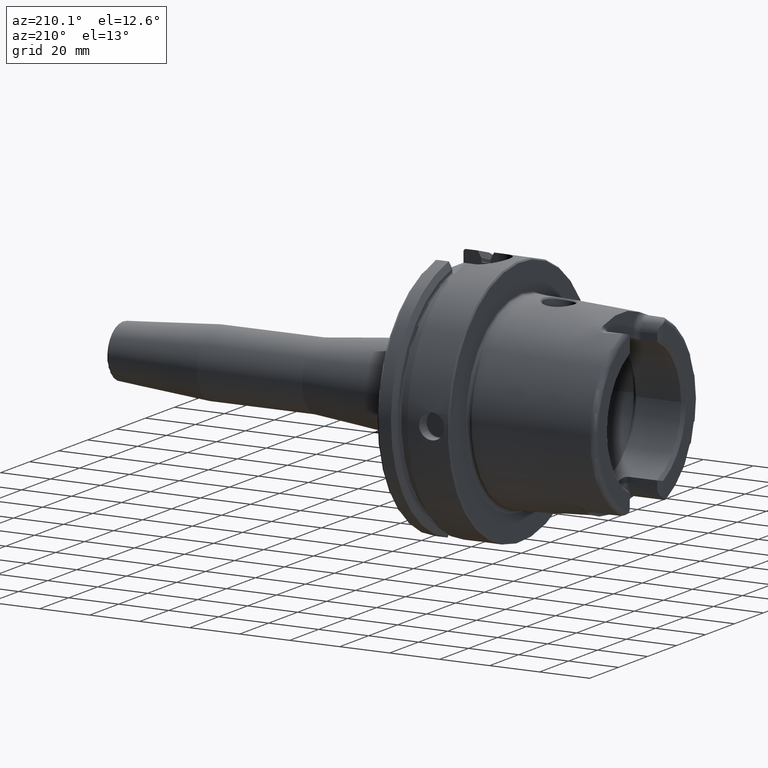
[diagram: clean part render]
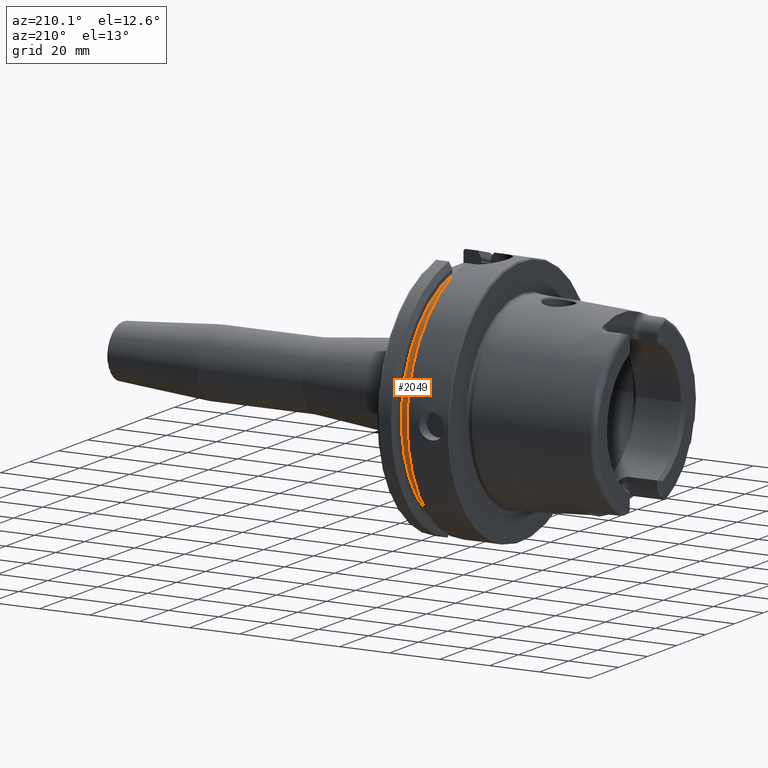
[diagram: same view with one face highlighted and labeled with its STEP entity id]
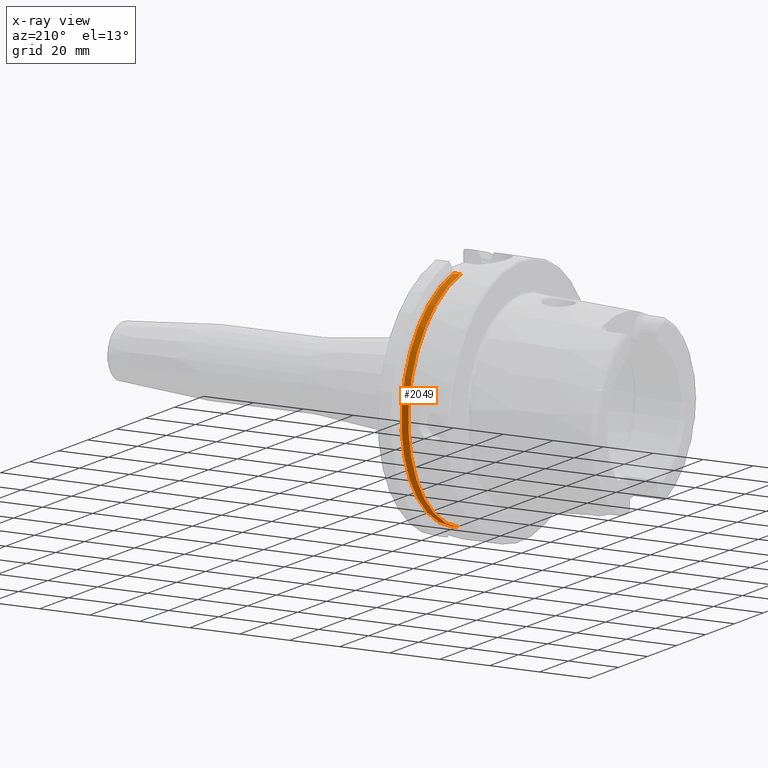
[diagram: x-ray of the same camera — body ghosted, the highlighted face saturated]
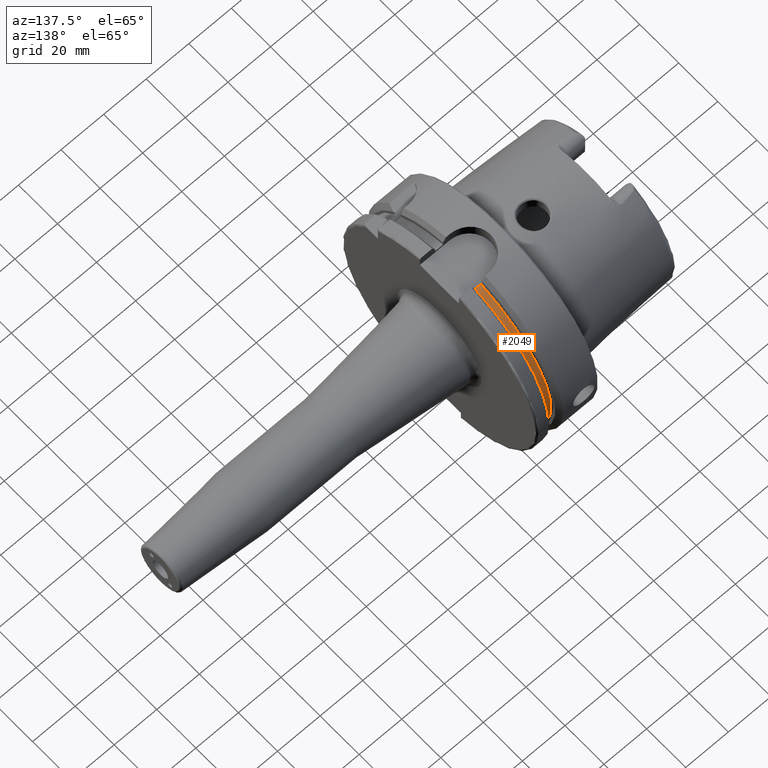
[diagram: same view with one face highlighted and labeled with its STEP entity id]
A machine part, auxiliary view. The second image highlights one B-rep face of the part: STEP entity #2049.
The next image is the same camera in x-ray: the body ghosted, the highlighted face saturated — about 0% of this face is hidden behind the body in this view.
A second angle (auxiliary view) of the same face is appended — the face is thin or edge-on in the first view.
In plain terms, the highlighted cylindrical surface (partial cylindrical patch) has radius 46 mm, axis along (1, 0, 0).
Its self-contained STEP definition (entity closure, byte-faithful):
#193=CYLINDRICAL_SURFACE('',#2278,46.);
#274=FACE_OUTER_BOUND('',#403,.T.);
#403=EDGE_LOOP('',(#1705,#1706,#1707,#1708));
#530=LINE('',#4175,#638);
#544=LINE('',#4304,#652);
#638=VECTOR('',#2718,10.);
#652=VECTOR('',#2778,10.);
#754=CIRCLE('',#2277,46.);
#755=CIRCLE('',#2279,46.);
#956=VERTEX_POINT('',#4163);
#957=VERTEX_POINT('',#4174);
#976=VERTEX_POINT('',#4289);
#977=VERTEX_POINT('',#4302);
#1213=EDGE_CURVE('',#957,#956,#530,.T.);
#1244=EDGE_CURVE('',#957,#976,#754,.T.);
#1246=EDGE_CURVE('',#956,#977,#755,.T.);
#1247=EDGE_CURVE('',#977,#976,#544,.T.);
#1705=ORIENTED_EDGE('',*,*,#1213,.T.);
#1706=ORIENTED_EDGE('',*,*,#1246,.T.);
#1707=ORIENTED_EDGE('',*,*,#1247,.T.);
#1708=ORIENTED_EDGE('',*,*,#1244,.F.);
#2049=ADVANCED_FACE('',(#274),#193,.T.);
#2277=AXIS2_PLACEMENT_3D('',#4290,#2772,#2773);
#2278=AXIS2_PLACEMENT_3D('',#4301,#2774,#2775);
#2279=AXIS2_PLACEMENT_3D('',#4303,#2776,#2777);
#2718=DIRECTION('',(-1.,0.,0.));
#2772=DIRECTION('center_axis',(1.,0.,0.));
#2773=DIRECTION('ref_axis',(0.,0.,-1.));
#2774=DIRECTION('center_axis',(1.,0.,0.));
#2775=DIRECTION('ref_axis',(0.,1.,0.));
#2776=DIRECTION('center_axis',(1.,0.,0.));
#2777=DIRECTION('ref_axis',(0.,0.,-1.));
#2778=DIRECTION('',(1.,0.,0.));
#4163=CARTESIAN_POINT('',(18.625,11.,-44.6654228682546));
#4174=CARTESIAN_POINT('',(21.375,11.,-44.6654228682546));
#4175=CARTESIAN_POINT('',(20.,11.,-44.6654228682546));
#4289=CARTESIAN_POINT('',(21.375,10.,44.8998886412873));
#4290=CARTESIAN_POINT('Origin',(21.375,0.,0.));
#4301=CARTESIAN_POINT('Origin',(20.,0.,0.));
#4302=CARTESIAN_POINT('',(18.625,10.,44.8998886412873));
#4303=CARTESIAN_POINT('Origin',(18.625,0.,0.));
#4304=CARTESIAN_POINT('',(20.,10.,44.8998886412873));